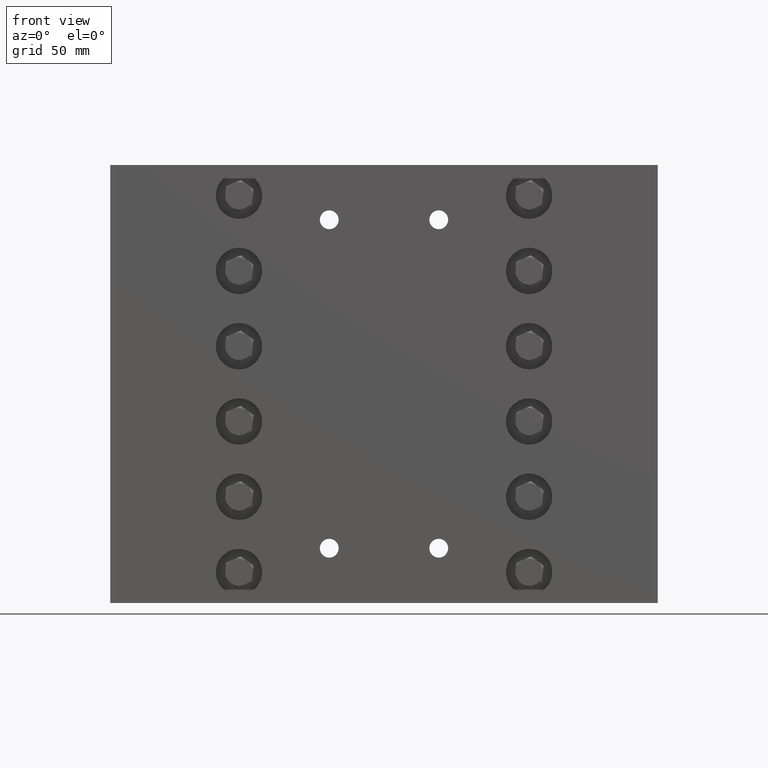
[diagram: clean part render]
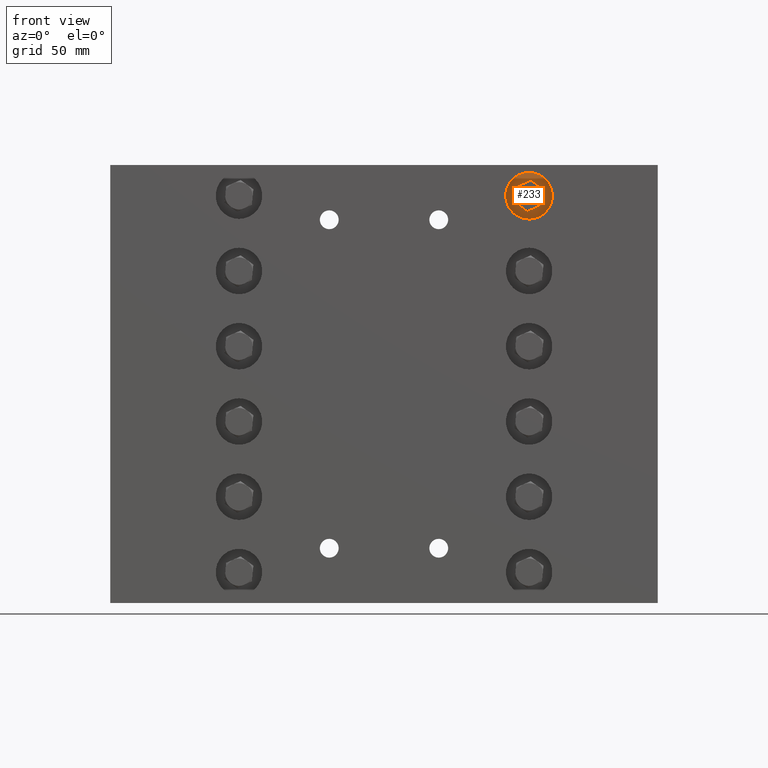
[diagram: same view with one face highlighted and labeled with its STEP entity id]
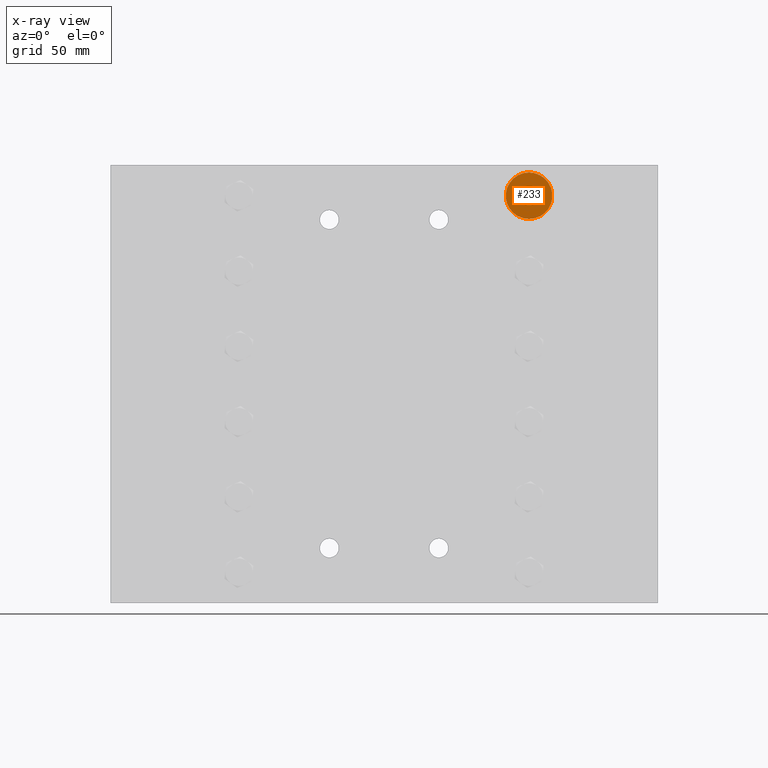
[diagram: x-ray of the same camera — body ghosted, the highlighted face saturated]
A machine part, front view. The second image highlights one B-rep face of the part: STEP entity #233.
The next image is the same camera in x-ray: the body ghosted, the highlighted face saturated — about 0% of this face is hidden behind the body in this view.
In plain terms, the highlighted planar face has unit normal (0, 1, 0).
Its self-contained STEP definition (entity closure, byte-faithful):
#233 = ADVANCED_FACE ( 'NONE', ( #8463, #19727 ), #28153, .F. ) ;
#1803 = CARTESIAN_POINT ( 'NONE',  ( 2.650000000000000400, 0.3799999999999998900, 3.012999999999999900 ) ) ;
#3056 = CARTESIAN_POINT ( 'NONE',  ( 2.650000000000000400, 0.3799999999999998900, 3.437999999999999700 ) ) ;
#8256 = EDGE_CURVE ( 'NONE', #28999, #28999, #31990, .T. ) ;
#8463 = FACE_BOUND ( 'NONE', #29486, .T. ) ;
#10379 = EDGE_LOOP ( 'NONE', ( #20642 ) ) ;
#11132 = AXIS2_PLACEMENT_3D ( 'NONE', #27718, #27664, #27567 ) ;
#14748 = AXIS2_PLACEMENT_3D ( 'NONE', #3056, #25833, #24348 ) ;
#18066 = EDGE_CURVE ( 'NONE', #30683, #30683, #42379, .T. ) ;
#19727 = FACE_OUTER_BOUND ( 'NONE', #10379, .T. ) ;
#20642 = ORIENTED_EDGE ( 'NONE', *, *, #8256, .T. ) ;
#24348 = DIRECTION ( 'NONE',  ( 0.0000000000000000000, 0.0000000000000000000, -1.000000000000000000 ) ) ;
#25833 = DIRECTION ( 'NONE',  ( -0.0000000000000000000, -1.000000000000000000, -0.0000000000000000000 ) ) ;
#27567 = DIRECTION ( 'NONE',  ( 0.0000000000000000000, -0.0000000000000000000, 1.000000000000000000 ) ) ;
#27664 = DIRECTION ( 'NONE',  ( 0.0000000000000000000, 1.000000000000000000, 0.0000000000000000000 ) ) ;
#27718 = CARTESIAN_POINT ( 'NONE',  ( 2.819500000000000600, 0.3799999999999998900, 3.437999999999999700 ) ) ;
#28153 = PLANE ( 'NONE',  #11132 ) ;
#28463 = ORIENTED_EDGE ( 'NONE', *, *, #18066, .F. ) ;
#28999 = VERTEX_POINT ( 'NONE', #1803 ) ;
#29486 = EDGE_LOOP ( 'NONE', ( #28463 ) ) ;
#30683 = VERTEX_POINT ( 'NONE', #39445 ) ;
#31990 = CIRCLE ( 'NONE', #14748, 0.4249999999999999900 ) ;
#32029 = DIRECTION ( 'NONE',  ( 0.0000000000000000000, 0.0000000000000000000, -1.000000000000000000 ) ) ;
#33426 = DIRECTION ( 'NONE',  ( -0.0000000000000000000, -1.000000000000000000, -0.0000000000000000000 ) ) ;
#33609 = CARTESIAN_POINT ( 'NONE',  ( 2.650000000000000400, 0.3799999999999998900, 3.437999999999999700 ) ) ;
#39445 = CARTESIAN_POINT ( 'NONE',  ( 2.650000000000000400, 0.3799999999999998900, 3.268500000000000000 ) ) ;
#42379 = CIRCLE ( 'NONE', #43393, 0.1694999999999999300 ) ;
#43393 = AXIS2_PLACEMENT_3D ( 'NONE', #33609, #33426, #32029 ) ;